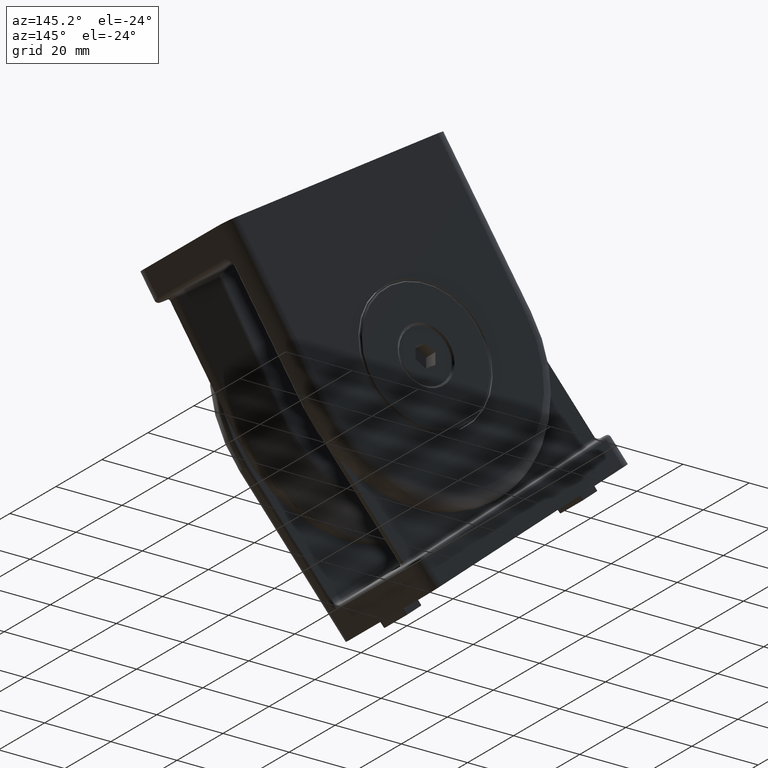
[diagram: clean part render]
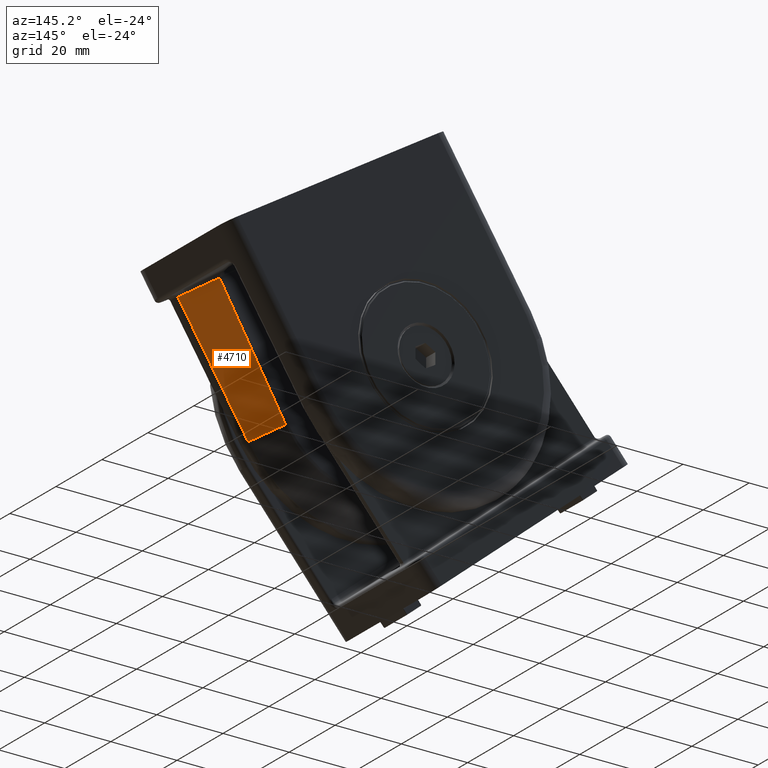
[diagram: same view with one face highlighted and labeled with its STEP entity id]
A machine part, auxiliary view. The second image highlights one B-rep face of the part: STEP entity #4710.
In plain terms, the highlighted planar face has unit normal (-0.3429, -0.9144, 0.215).
Its self-contained STEP definition (entity closure, byte-faithful):
#177=PLANE('',#5189);
#354=LINE('',#8201,#659);
#395=LINE('',#8453,#700);
#396=LINE('',#8455,#701);
#397=LINE('',#8456,#702);
#659=VECTOR('',#6065,11.9115126554604);
#700=VECTOR('',#6198,40.);
#701=VECTOR('',#6199,10.6914244923029);
#702=VECTOR('',#6200,40.0186033630095);
#1240=FACE_OUTER_BOUND('',#1602,.T.);
#1602=EDGE_LOOP('',(#3711,#3712,#3713,#3714));
#2300=VERTEX_POINT('',#8189);
#2301=VERTEX_POINT('',#8200);
#2338=VERTEX_POINT('',#8452);
#2339=VERTEX_POINT('',#8454);
#2770=EDGE_CURVE('',#2301,#2300,#354,.T.);
#2836=EDGE_CURVE('',#2338,#2300,#395,.T.);
#2837=EDGE_CURVE('',#2339,#2338,#396,.T.);
#2838=EDGE_CURVE('',#2301,#2339,#397,.T.);
#3711=ORIENTED_EDGE('',*,*,#2836,.F.);
#3712=ORIENTED_EDGE('',*,*,#2837,.F.);
#3713=ORIENTED_EDGE('',*,*,#2838,.F.);
#3714=ORIENTED_EDGE('',*,*,#2770,.T.);
#4710=ADVANCED_FACE('',(#1240),#177,.F.);
#5189=AXIS2_PLACEMENT_3D('',#8451,#6196,#6197);
#6065=DIRECTION('',(0.914428660574951,-0.404747112057765,0.));
#6196=DIRECTION('center_axis',(-0.404747112057765,-0.914428660574951,-5.47999467020816E-16));
#6197=DIRECTION('ref_axis',(0.914428660574951,-0.404747112057765,0.));
#6198=DIRECTION('',(-2.2180120168587E-16,-5.01106418623632E-16,1.));
#6199=DIRECTION('',(0.914428660574951,-0.404747112057765,0.));
#6200=DIRECTION('',(0.0278791234841219,-0.0123399399028074,-0.999535132127407));
#8189=CARTESIAN_POINT('',(36.9071206680866,-12.2047911153826,-1.));
#8200=CARTESIAN_POINT('',(26.0148921051324,-7.38364076784552,-1.));
#8201=CARTESIAN_POINT('',(-28.0046067415731,16.5266292134831,-1.));
#8451=CARTESIAN_POINT('Origin',(25.6,-7.2,-1.9225813353265E-14));
#8452=CARTESIAN_POINT('',(36.9071206680867,-12.2047911153826,-41.));
#8453=CARTESIAN_POINT('',(36.9071206680866,-12.2047911153826,-1.9225813353265E-14));
#8454=CARTESIAN_POINT('',(27.1305756899519,-7.87746792833935,-41.));
#8455=CARTESIAN_POINT('',(25.6,-7.19999999999998,-41.));
#8456=CARTESIAN_POINT('',(26.0148921051324,-7.38364076784552,-1.));